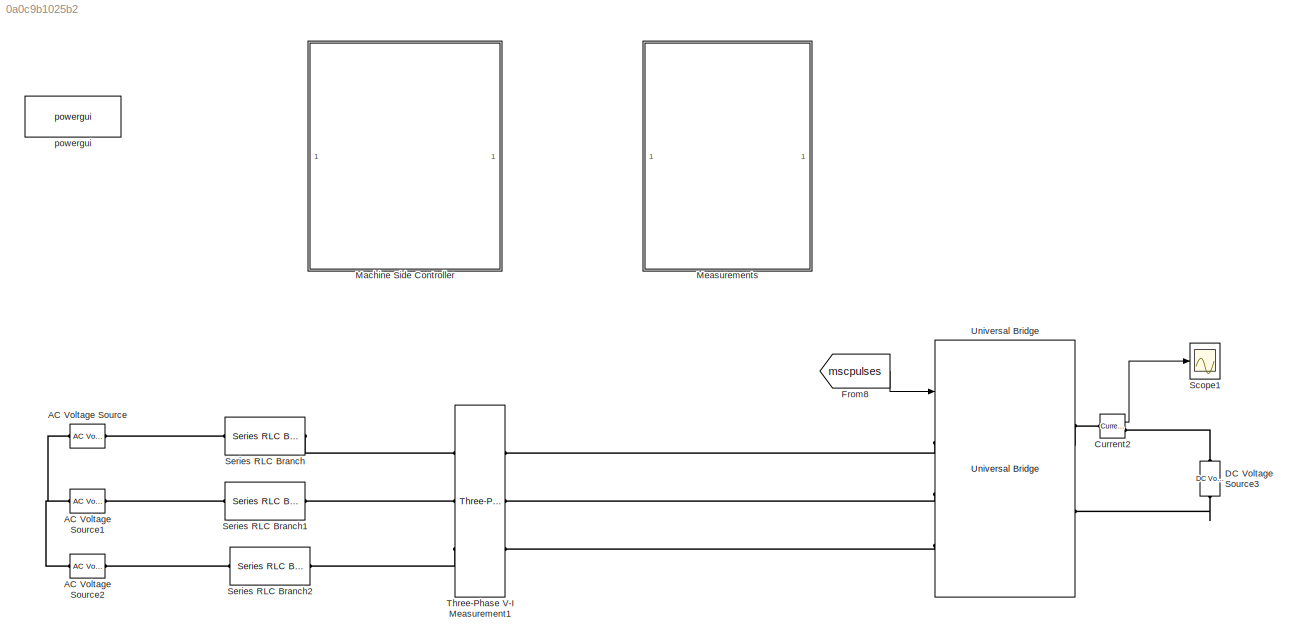
MODEL slx_0a0c9b1025b2
KIND model
CONFIG AbsTol = auto
CONFIG FixedStep = Ts
CONFIG MaxStep = auto
CONFIG MinStep = auto
CONFIG RelTol = 1e-3
CONFIG SampleTimeConstraint = Unconstrained
CONFIG Solver = FixedStepAuto
CONFIG SolverMode = SingleTasking
CONFIG SolverName = FixedStepAuto
CONFIG StartTime = 0.0
CONFIG StopTime = 10.0
BLOCK [Reference] AC Voltage Source  REF=powerlib/Electrical
Sources/AC Voltage Source
  Ports = [0, 0, 0, 0, 0, 1, 1]
  SourceBlock = powerlib/Electrical\nSources/AC Voltage Source
  SourceType = AC Voltage Source
BLOCK [Reference] AC Voltage Source1  REF=powerlib/Electrical
Sources/AC Voltage Source
  Ports = [0, 0, 0, 0, 0, 1, 1]
  SourceBlock = powerlib/Electrical\nSources/AC Voltage Source
  SourceType = AC Voltage Source
BLOCK [Reference] AC Voltage Source2  REF=powerlib/Electrical
Sources/AC Voltage Source
  Ports = [0, 0, 0, 0, 0, 1, 1]
  SourceBlock = powerlib/Electrical\nSources/AC Voltage Source
  SourceType = AC Voltage Source
BLOCK [Reference] Current2  REF=powerlib/Measurements/Current Measurement
  Ports = [0, 1, 0, 0, 0, 1, 1]
  SourceBlock = powerlib/Measurements/Current Measurement
  SourceType = Current Measurement
  UserDataPersistent = on
BLOCK [Reference] DC Voltage Source3  REF=powerlib/Electrical
Sources/DC Voltage Source
  Ports = [0, 0, 0, 0, 0, 1, 1]
  SourceBlock = powerlib/Electrical\nSources/DC Voltage Source
  SourceType = DC Voltage Source
BLOCK [From] From8
  GotoTag = mscpulses
  TagVisibility = global
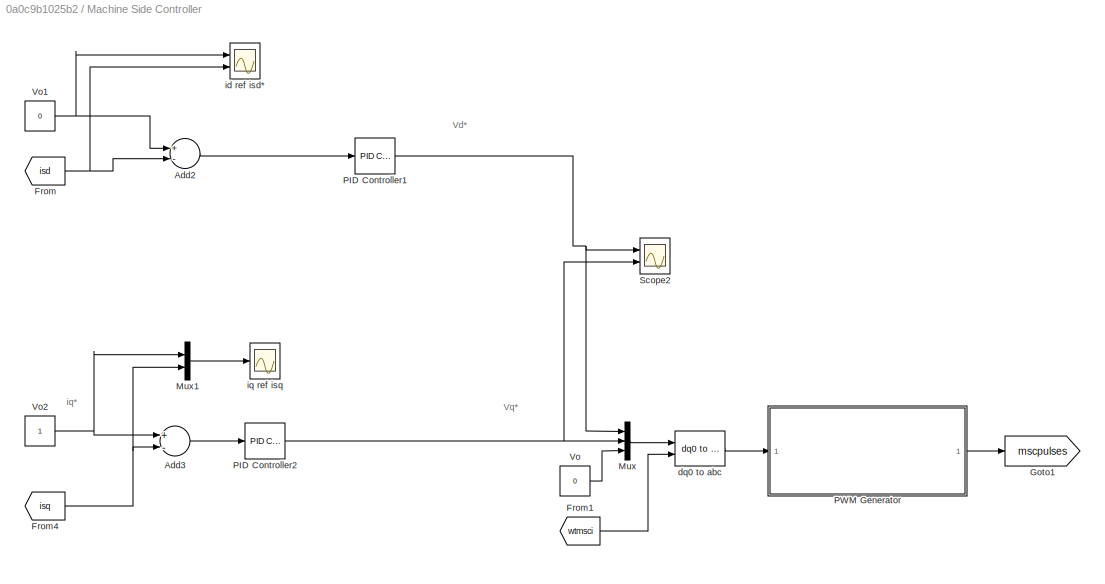
BLOCK [SubSystem] Machine Side Controller 
  Ports = []
  RequestExecContextInheritance = off
  Variant = off
BLOCK [Sum] Machine Side Controller /Add2
  InputSameDT = off
  Inputs = +-
  OutDataTypeStr = Inherit: Inherit via internal rule
  Ports = [2, 1]
  SaturateOnIntegerOverflow = off
BLOCK [Sum] Machine Side Controller /Add3
  InputSameDT = off
  Inputs = +-
  OutDataTypeStr = Inherit: Inherit via internal rule
  Ports = [2, 1]
  SaturateOnIntegerOverflow = off
BLOCK [From] Machine Side Controller /From
  GotoTag = isd
  TagVisibility = global
BLOCK [From] Machine Side Controller /From1
  GotoTag = wtmsci
  TagVisibility = global
BLOCK [From] Machine Side Controller /From4
  GotoTag = isq
  TagVisibility = global
BLOCK [Goto] Machine Side Controller /Goto1
  GotoTag = mscpulses
  TagVisibility = global
BLOCK [Mux] Machine Side Controller /Mux
  DisplayOption = bar
  Inputs = 3
  Ports = [3, 1]
BLOCK [Mux] Machine Side Controller /Mux1
  DisplayOption = bar
  Inputs = 2
  Ports = [2, 1]
BLOCK [Reference] Machine Side Controller /PID Controller1  REF=simulink/Continuous/PID Controller
  Ports = [1, 1]
  SourceBlock = simulink/Continuous/PID Controller
  SourceType = PID 1dof
BLOCK [Reference] Machine Side Controller /PID Controller2  REF=simulink/Continuous/PID Controller
  Ports = [1, 1]
  SourceBlock = simulink/Continuous/PID Controller
  SourceType = PID 1dof
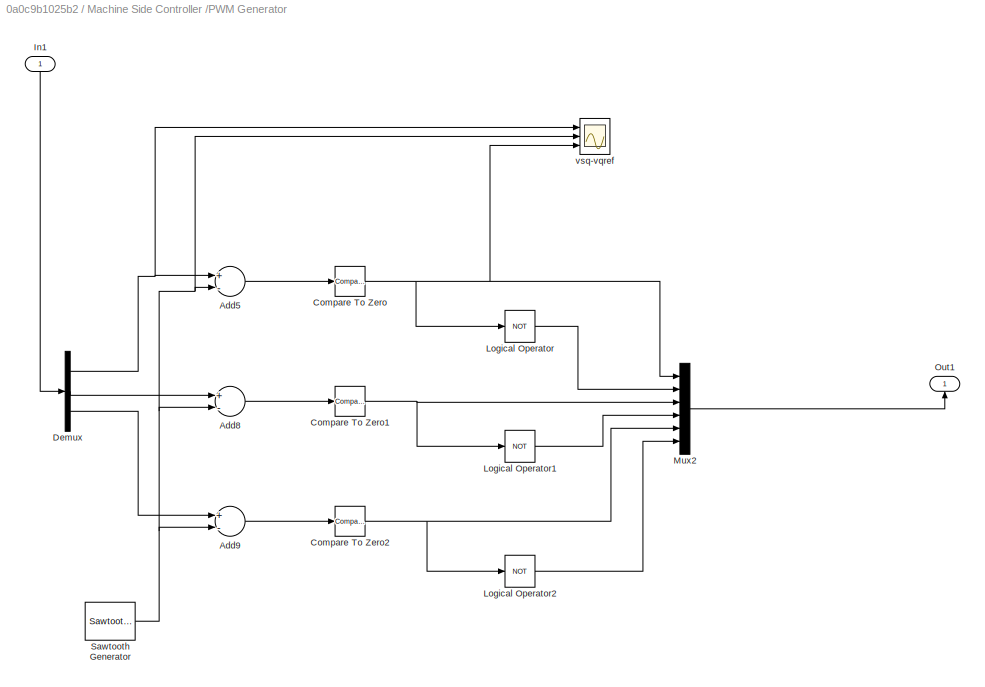
BLOCK [SubSystem] Machine Side Controller /PWM Generator 
  Ports = [1, 1]
  RequestExecContextInheritance = off
  Variant = off
BLOCK [Sum] Machine Side Controller /PWM Generator /Add5
  InputSameDT = off
  Inputs = +-
  OutDataTypeStr = Inherit: Inherit via internal rule
  Ports = [2, 1]
  SaturateOnIntegerOverflow = off
BLOCK [Sum] Machine Side Controller /PWM Generator /Add8
  InputSameDT = off
  Inputs = +-
  OutDataTypeStr = Inherit: Inherit via internal rule
  Ports = [2, 1]
  SaturateOnIntegerOverflow = off
BLOCK [Sum] Machine Side Controller /PWM Generator /Add9
  InputSameDT = off
  Inputs = +-
  OutDataTypeStr = Inherit: Inherit via internal rule
  Ports = [2, 1]
  SaturateOnIntegerOverflow = off
BLOCK [Reference] Machine Side Controller /PWM Generator /Compare To Zero  REF=simulink/Logic and Bit
Operations/Compare
To Zero
  Ports = [1, 1]
  SourceBlock = simulink/Logic and Bit\nOperations/Compare\nTo Zero
  SourceType = Compare To Zero
BLOCK [Reference] Machine Side Controller /PWM Generator /Compare To Zero1  REF=simulink/Logic and Bit
Operations/Compare
To Zero
  Ports = [1, 1]
  SourceBlock = simulink/Logic and Bit\nOperations/Compare\nTo Zero
  SourceType = Compare To Zero
BLOCK [Reference] Machine Side Controller /PWM Generator /Compare To Zero2  REF=simulink/Logic and Bit
Operations/Compare
To Zero
  Ports = [1, 1]
  SourceBlock = simulink/Logic and Bit\nOperations/Compare\nTo Zero
  SourceType = Compare To Zero
BLOCK [Demux] Machine Side Controller /PWM Generator /Demux
  DisplayOption = bar
  Outputs = 3
  Ports = [1, 3]
BLOCK [Inport] Machine Side Controller /PWM Generator /In1
  IconDisplay = Port number
BLOCK [Logic] Machine Side Controller /PWM Generator /Logical Operator
  AllPortsSameDT = off
  Operator = NOT
  OutDataTypeStr = boolean
  Ports = [1, 1]
BLOCK [Logic] Machine Side Controller /PWM Generator /Logical Operator1
  AllPortsSameDT = off
  Operator = NOT
  OutDataTypeStr = boolean
  Ports = [1, 1]
BLOCK [Logic] Machine Side Controller /PWM Generator /Logical Operator2
  AllPortsSameDT = off
  Operator = NOT
  OutDataTypeStr = boolean
  Ports = [1, 1]
BLOCK [Mux] Machine Side Controller /PWM Generator /Mux2
  DisplayOption = bar
  Inputs = 6
  Ports = [6, 1]
BLOCK [Outport] Machine Side Controller /PWM Generator /Out1
  IconDisplay = Port number
BLOCK [Reference] Machine Side Controller /PWM Generator /Sawtooth Generator  REF=powerlib_meascontrol/Pulse & Signal
Generators/Sawtooth
Generator
  Ports = [0, 1]
  SourceBlock = powerlib_meascontrol/Pulse & Signal\nGenerators/Sawtooth\nGenerator
  SourceType = Sawtooth Generator
BLOCK [Scope] Machine Side Controller /PWM Generator /vsq-vqref
  NumInputPorts = 3
  Ports = [3]
  ScopeSpecificationString = Simulink.scopes.TimeScopeBlockCfg('CurrentConfiguration', extmgr.ConfigurationSet(extmgr.Configuration('Core','General UI',true),extmgr.Configuration('Core','Source UI',true),extmgr.Configuration('Sources','WiredSimulink',true,'DataLoggingVariableName','ScopeData1','DataLoggingSaveFormat','Array','DataLoggingDecimation','1','DataLoggingDecimateData',true),extmgr.Configuration('Visuals','Time Domai...<+1568ch>
BLOCK [Scope] Machine Side Controller /Scope2
  NumInputPorts = 2
  Ports = [2]
  ScopeSpecificationString = Simulink.scopes.TimeScopeBlockCfg('CurrentConfiguration', extmgr.ConfigurationSet(extmgr.Configuration('Core','General UI',true),extmgr.Configuration('Core','Source UI',true),extmgr.Configuration('Sources','WiredSimulink',true,'DataLoggingVariableName','ScopeData3','DataLoggingSaveFormat','Array','DataLoggingDecimation','1','DataLoggingDecimateData',true),extmgr.Configuration('Visuals','Time Domai...<+1553ch>
BLOCK [Constant] Machine Side Controller /Vo
  Value = 0
BLOCK [Constant] Machine Side Controller /Vo1
  Value = 0
BLOCK [Constant] Machine Side Controller /Vo2
BLOCK [Reference] Machine Side Controller /dq0 to abc  REF=powerlib_meascontrol/Transformations/dq0 to abc
  Ports = [2, 1]
  SourceBlock = powerlib_meascontrol/Transformations/dq0 to abc
  SourceType = dq0 to abc Transformation
BLOCK [Scope] Machine Side Controller /id ref isd*
  NumInputPorts = 2
  Ports = [2]
  ScopeSpecificationString = Simulink.scopes.TimeScopeBlockCfg('CurrentConfiguration', extmgr.ConfigurationSet(extmgr.Configuration('Core','General UI',true),extmgr.Configuration('Core','Source UI',true),extmgr.Configuration('Sources','WiredSimulink',true,'DataLoggingVariableName','ScopeData3','DataLoggingSaveFormat','Array','DataLoggingDecimation','1','DataLoggingDecimateData',true),extmgr.Configuration('Visuals','Time Domai...<+1541ch>
BLOCK [Scope] Machine Side Controller /iq ref isq
  Ports = [1]
  ScopeSpecificationString = Simulink.scopes.TimeScopeBlockCfg('CurrentConfiguration', extmgr.ConfigurationSet(extmgr.Configuration('Core','General UI',true),extmgr.Configuration('Core','Source UI',true),extmgr.Configuration('Sources','WiredSimulink',true,'DataLoggingVariableName','ScopeData7','DataLoggingSaveFormat','Array','DataLoggingDecimation','1','DataLoggingDecimateData',true),extmgr.Configuration('Visuals','Time Domai...<+1537ch>
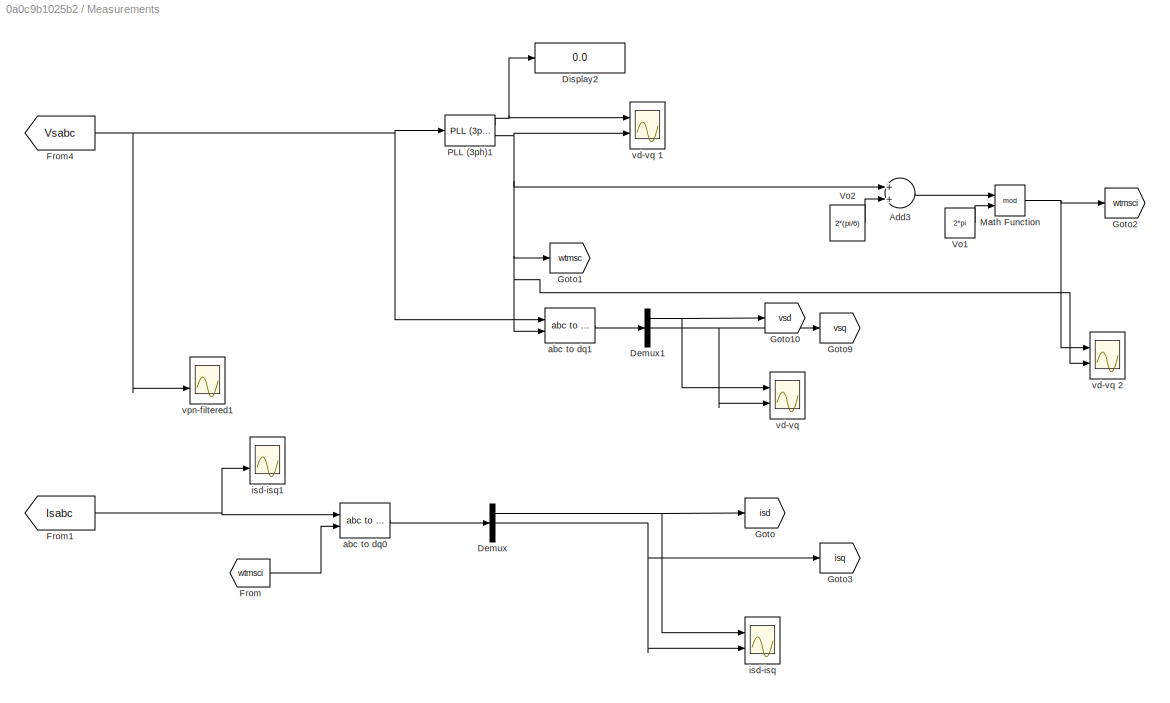
BLOCK [SubSystem] Measurements
  Ports = []
  RequestExecContextInheritance = off
  Variant = off
BLOCK [Sum] Measurements/Add3
  InputSameDT = off
  OutDataTypeStr = Inherit: Inherit via internal rule
  Ports = [2, 1]
  SaturateOnIntegerOverflow = off
BLOCK [Demux] Measurements/Demux
  DisplayOption = bar
  Outputs = 3
  Ports = [1, 3]
BLOCK [Demux] Measurements/Demux1
  DisplayOption = bar
  Outputs = 3
  Ports = [1, 3]
BLOCK [Display] Measurements/Display2
  Decimation = 1
  Ports = [1]
BLOCK [From] Measurements/From
  GotoTag = wtmsci
  TagVisibility = global
BLOCK [From] Measurements/From1
  GotoTag = Isabc
  TagVisibility = global
BLOCK [From] Measurements/From4
  GotoTag = Vsabc
  TagVisibility = global
BLOCK [Goto] Measurements/Goto
  GotoTag = isd
  TagVisibility = global
BLOCK [Goto] Measurements/Goto1
  GotoTag = wtmsc
  TagVisibility = global
BLOCK [Goto] Measurements/Goto10
  GotoTag = vsd
  TagVisibility = global
BLOCK [Goto] Measurements/Goto2
  GotoTag = wtmsci
  TagVisibility = global
BLOCK [Goto] Measurements/Goto3
  GotoTag = isq
  TagVisibility = global
BLOCK [Goto] Measurements/Goto9
  GotoTag = vsq
  TagVisibility = global
BLOCK [Math] Measurements/Math Function
  Operator = mod
  Ports = [2, 1]
BLOCK [Reference] Measurements/PLL (3ph)1  REF=powerlib_meascontrol/PLL/PLL
(3ph)
  Ports = [1, 2]
  SourceBlock = powerlib_meascontrol/PLL/PLL\n(3ph)
  SourceType = PLL (3ph)
BLOCK [Constant] Measurements/Vo1
  Value = 2*pi
BLOCK [Constant] Measurements/Vo2
  Value = 2*(pi/6)
BLOCK [Reference] Measurements/abc to dq0  REF=powerlib_meascontrol/Transformations/abc to dq0
  Ports = [2, 1]
  SourceBlock = powerlib_meascontrol/Transformations/abc to dq0
  SourceType = abc to dq0 Transformation
BLOCK [Reference] Measurements/abc to dq1  REF=powerlib_meascontrol/Transformations/abc to dq0
  Ports = [2, 1]
  SourceBlock = powerlib_meascontrol/Transformations/abc to dq0
  SourceType = abc to dq0 Transformation
BLOCK [Scope] Measurements/isd-isq
  NumInputPorts = 2
  Ports = [2]
  ScopeSpecificationString = Simulink.scopes.TimeScopeBlockCfg('CurrentConfiguration', extmgr.ConfigurationSet(extmgr.Configuration('Core','General UI',true),extmgr.Configuration('Core','Source UI',true),extmgr.Configuration('Sources','WiredSimulink',true,'DataLoggingVariableName','ScopeData4'),extmgr.Configuration('Visuals','Time Domain',true,'SerializedDisplays',{struct('MinYLimReal','-16.76367','MaxYLimReal','34.78176','YL...<+1426ch>
BLOCK [Scope] Measurements/isd-isq1
  NumInputPorts = 2
  Ports = [2]
  ScopeSpecificationString = Simulink.scopes.TimeScopeBlockCfg('CurrentConfiguration', extmgr.ConfigurationSet(extmgr.Configuration('Core','General UI',true),extmgr.Configuration('Core','Source UI',true),extmgr.Configuration('Sources','WiredSimulink',true,'DataLoggingVariableName','ScopeData5'),extmgr.Configuration('Visuals','Time Domain',true,'SerializedDisplays',{struct('MinYLimReal','-18.70295','MaxYLimReal','21.11864','YL...<+1485ch>
BLOCK [Scope] Measurements/vd-vq 
  NumInputPorts = 2
  Ports = [2]
  ScopeSpecificationString = Simulink.scopes.TimeScopeBlockCfg('CurrentConfiguration', extmgr.ConfigurationSet(extmgr.Configuration('Core','General UI',true),extmgr.Configuration('Core','Source UI',true),extmgr.Configuration('Sources','WiredSimulink',true,'DataLoggingVariableName','ScopeData12'),extmgr.Configuration('Visuals','Time Domain',true,'SerializedDisplays',{struct('MinYLimReal','-0.34653','MaxYLimReal','1.07155','YLa...<+1423ch>
BLOCK [Scope] Measurements/vd-vq 1
  NumInputPorts = 2
  Ports = [2]
  ScopeSpecificationString = Simulink.scopes.TimeScopeBlockCfg('CurrentConfiguration', extmgr.ConfigurationSet(extmgr.Configuration('Core','General UI',true),extmgr.Configuration('Core','Source UI',true),extmgr.Configuration('Sources','WiredSimulink',true,'DataLoggingVariableName','ScopeData1'),extmgr.Configuration('Visuals','Time Domain',true,'SerializedDisplays',{struct('MinYLimReal','-8.20074','MaxYLimReal','8.92904','YLab...<+1459ch>
BLOCK [Scope] Measurements/vd-vq 2
  NumInputPorts = 2
  Ports = [2]
  ScopeSpecificationString = Simulink.scopes.TimeScopeBlockCfg('CurrentConfiguration', extmgr.ConfigurationSet(extmgr.Configuration('Core','General UI',true),extmgr.Configuration('Core','Source UI',true),extmgr.Configuration('Sources','WiredSimulink',true,'DataLoggingVariableName','ScopeData2'),extmgr.Configuration('Visuals','Time Domain',true,'SerializedDisplays',{struct('MinYLimReal','-0.45128','MaxYLimReal','6.55222','YLab...<+1458ch>
BLOCK [Scope] Measurements/vpn-filtered1
  NumInputPorts = 2
  Ports = [2]
  ScopeSpecificationString = Simulink.scopes.TimeScopeBlockCfg('CurrentConfiguration', extmgr.ConfigurationSet(extmgr.Configuration('Core','General UI',true),extmgr.Configuration('Core','Source UI',true),extmgr.Configuration('Sources','WiredSimulink',true,'DataLoggingVariableName','ScopeData7'),extmgr.Configuration('Visuals','Time Domain',true,'SerializedDisplays',{struct('MinYLimReal','-1.53731','MaxYLimReal','1.53734','YLab...<+1479ch>
BLOCK [Scope] Scope1
  Ports = [1]
  ScopeSpecificationString = Simulink.scopes.TimeScopeBlockCfg('CurrentConfiguration', extmgr.ConfigurationSet(extmgr.Configuration('Core','General UI',true),extmgr.Configuration('Core','Source UI',true),extmgr.Configuration('Sources','WiredSimulink',true,'DataLoggingVariableName','ScopeData6','DataLoggingLimitDataPoints',true,'DataLoggingSaveFormat','Array','DataLoggingDecimation','1','DataLoggingDecimateData',true),extmgr.C...<+1571ch>
BLOCK [Reference] Series RLC Branch  REF=powerlib/Elements/Series RLC Branch
  Ports = [0, 0, 0, 0, 0, 1, 1]
  SourceBlock = powerlib/Elements/Series RLC Branch
  SourceType = Series RLC Branch
BLOCK [Reference] Series RLC Branch1  REF=powerlib/Elements/Series RLC Branch
  Ports = [0, 0, 0, 0, 0, 1, 1]
  SourceBlock = powerlib/Elements/Series RLC Branch
  SourceType = Series RLC Branch
BLOCK [Reference] Series RLC Branch2  REF=powerlib/Elements/Series RLC Branch
  Ports = [0, 0, 0, 0, 0, 1, 1]
  SourceBlock = powerlib/Elements/Series RLC Branch
  SourceType = Series RLC Branch
BLOCK [Reference] Three-Phase V-I Measurement1  REF=powerlib/Measurements/Three-Phase
V-I Measurement
  Ports = [0, 0, 0, 0, 0, 3, 3]
  SourceBlock = powerlib/Measurements/Three-Phase\nV-I Measurement
  SourceType = Three-Phase VI Measurement
BLOCK [Reference] Universal Bridge  REF=powerlib/Power
Electronics/Universal Bridge
  Ports = [1, 0, 0, 0, 0, 3, 2]
  SourceBlock = powerlib/Power\nElectronics/Universal Bridge
  SourceType = Universal Bridge
BLOCK [Reference] powergui  REF=powerlib/powergui
  Ports = []
  Priority = 2
  SourceBlock = powerlib/powergui
  SourceType = PSB option menu block
ANNOTATION Machine Side Controller : Vd*
ANNOTATION Machine Side Controller : Vq*
ANNOTATION Machine Side Controller : iq*
LINE Current2:1 -> Scope1:1
LINE From8:1 -> Universal Bridge:1
LINE Machine Side Controller /Add2:1 -> Machine Side Controller /PID Controller1:1
LINE Machine Side Controller /Add3:1 -> Machine Side Controller /PID Controller2:1
LINE Machine Side Controller /From1:1 -> Machine Side Controller /dq0 to abc:2
NET Machine Side Controller /From4:1 -> Machine Side Controller /Add3:2, Machine Side Controller /Mux1:2
NET Machine Side Controller /From:1 -> Machine Side Controller /Add2:2, Machine Side Controller /id ref isd*:2
LINE Machine Side Controller /Mux1:1 -> Machine Side Controller /iq ref isq:1
LINE Machine Side Controller /Mux:1 -> Machine Side Controller /dq0 to abc:1
NET Machine Side Controller /PID Controller1:1 -> Machine Side Controller /Mux:1, Machine Side Controller /Scope2:1
NET Machine Side Controller /PID Controller2:1 -> Machine Side Controller /Mux:2, Machine Side Controller /Scope2:2
LINE Machine Side Controller /PWM Generator /Add5:1 -> Machine Side Controller /PWM Generator /Compare To Zero:1
LINE Machine Side Controller /PWM Generator /Add8:1 -> Machine Side Controller /PWM Generator /Compare To Zero1:1
LINE Machine Side Controller /PWM Generator /Add9:1 -> Machine Side Controller /PWM Generator /Compare To Zero2:1
NET Machine Side Controller /PWM Generator /Compare To Zero1:1 -> Machine Side Controller /PWM Generator /Logical Operator1:1, Machine Side Controller /PWM Generator /Mux2:3
NET Machine Side Controller /PWM Generator /Compare To Zero2:1 -> Machine Side Controller /PWM Generator /Logical Operator2:1, Machine Side Controller /PWM Generator /Mux2:5
NET Machine Side Controller /PWM Generator /Compare To Zero:1 -> Machine Side Controller /PWM Generator /Logical Operator:1, Machine Side Controller /PWM Generator /Mux2:1, Machine Side Controller /PWM Generator /vsq-vqref:3
NET Machine Side Controller /PWM Generator /Demux:1 -> Machine Side Controller /PWM Generator /Add5:1, Machine Side Controller /PWM Generator /vsq-vqref:1
LINE Machine Side Controller /PWM Generator /Demux:2 -> Machine Side Controller /PWM Generator /Add8:1
LINE Machine Side Controller /PWM Generator /Demux:3 -> Machine Side Controller /PWM Generator /Add9:1
LINE Machine Side Controller /PWM Generator /In1:1 -> Machine Side Controller /PWM Generator /Demux:1
LINE Machine Side Controller /PWM Generator /Logical Operator1:1 -> Machine Side Controller /PWM Generator /Mux2:4
LINE Machine Side Controller /PWM Generator /Logical Operator2:1 -> Machine Side Controller /PWM Generator /Mux2:6
LINE Machine Side Controller /PWM Generator /Logical Operator:1 -> Machine Side Controller /PWM Generator /Mux2:2
LINE Machine Side Controller /PWM Generator /Mux2:1 -> Machine Side Controller /PWM Generator /Out1:1
NET Machine Side Controller /PWM Generator /Sawtooth Generator:1 -> Machine Side Controller /PWM Generator /Add5:2, Machine Side Controller /PWM Generator /Add8:2, Machine Side Controller /PWM Generator /Add9:2, Machine Side Controller /PWM Generator /vsq-vqref:2
LINE Machine Side Controller /PWM Generator :1 -> Machine Side Controller /Goto1:1
NET Machine Side Controller /Vo1:1 -> Machine Side Controller /Add2:1, Machine Side Controller /id ref isd*:1
NET Machine Side Controller /Vo2:1 -> Machine Side Controller /Add3:1, Machine Side Controller /Mux1:1
LINE Machine Side Controller /Vo:1 -> Machine Side Controller /Mux:3
LINE Machine Side Controller /dq0 to abc:1 -> Machine Side Controller /PWM Generator :1
LINE Measurements/Add3:1 -> Measurements/Math Function:1
NET Measurements/Demux1:1 -> Measurements/Goto10:1, Measurements/vd-vq :1
NET Measurements/Demux1:2 -> Measurements/Goto9:1, Measurements/vd-vq :2
NET Measurements/Demux:1 -> Measurements/Goto:1, Measurements/isd-isq:1
NET Measurements/Demux:2 -> Measurements/Goto3:1, Measurements/isd-isq:2
NET Measurements/From1:1 -> Measurements/abc to dq0:1, Measurements/isd-isq1:2
NET Measurements/From4:1 -> Measurements/PLL (3ph)1:1, Measurements/abc to dq1:1, Measurements/vpn-filtered1:2
LINE Measurements/From:1 -> Measurements/abc to dq0:2
NET Measurements/Math Function:1 -> Measurements/Goto2:1, Measurements/vd-vq 2:1
NET Measurements/PLL (3ph)1:1 -> Measurements/Display2:1, Measurements/vd-vq 1:1
NET Measurements/PLL (3ph)1:2 -> Measurements/Add3:1, Measurements/Goto1:1, Measurements/abc to dq1:2, Measurements/vd-vq 1:2, Measurements/vd-vq 2:2
LINE Measurements/Vo1:1 -> Measurements/Math Function:2
LINE Measurements/Vo2:1 -> Measurements/Add3:2
LINE Measurements/abc to dq0:1 -> Measurements/Demux:1
LINE Measurements/abc to dq1:1 -> Measurements/Demux1:1
PNET net1: AC Voltage Source1:LConn1 -- AC Voltage Source2:LConn1 -- AC Voltage Source:LConn1
PLINE AC Voltage Source1:RConn1 -- Series RLC Branch1:LConn1
PLINE AC Voltage Source2:RConn1 -- Series RLC Branch2:LConn1
PLINE AC Voltage Source:RConn1 -- Series RLC Branch:LConn1
PLINE Current2:LConn1 -- Universal Bridge:RConn1
PLINE Current2:RConn1 -- DC Voltage Source3:RConn1
PLINE DC Voltage Source3:LConn1 -- Universal Bridge:RConn2
PLINE Series RLC Branch1:RConn1 -- Three-Phase V-I Measurement1:LConn2
PLINE Series RLC Branch2:RConn1 -- Three-Phase V-I Measurement1:LConn3
PLINE Series RLC Branch:RConn1 -- Three-Phase V-I Measurement1:LConn1
PLINE Three-Phase V-I Measurement1:RConn1 -- Universal Bridge:LConn1
PLINE Three-Phase V-I Measurement1:RConn2 -- Universal Bridge:LConn2
PLINE Three-Phase V-I Measurement1:RConn3 -- Universal Bridge:LConn3
note: NET lines group one-source signal fan-out (src -> all destinations, sorted); 1:1 wires keep LINE; PNET lines group multi-terminal physical nets as a canonical sorted terminal list (undirected conserving connections); 2-terminal nets keep the pairwise PLINE form
